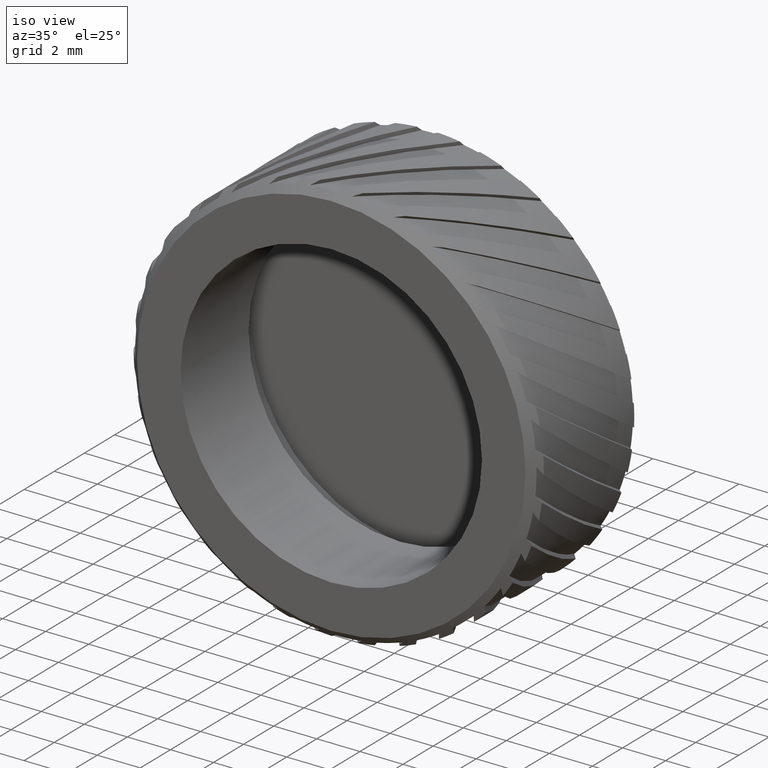
[diagram: clean part render]
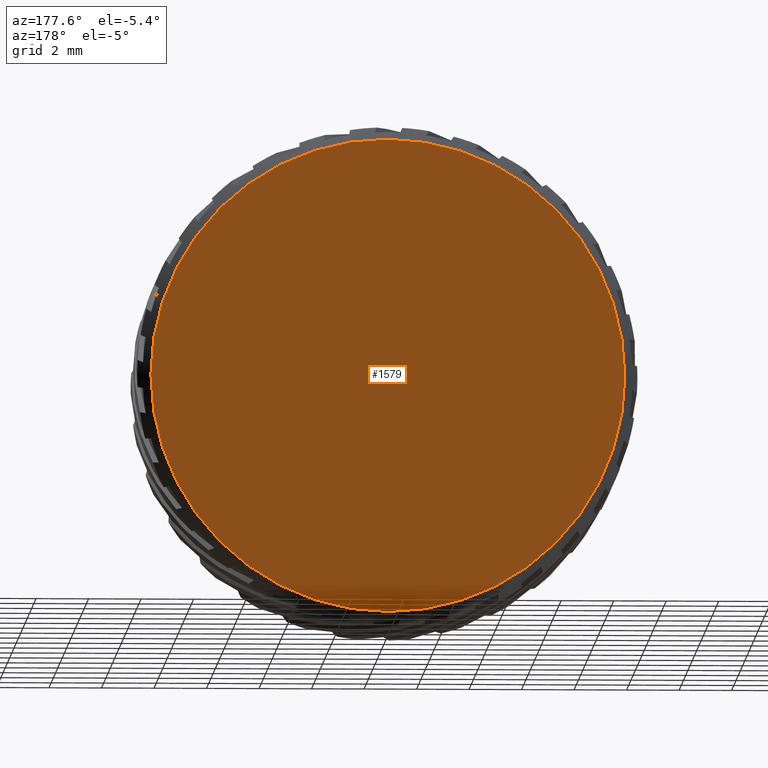
[diagram: tour spotlight — one face highlighted and labeled with its STEP entity id]
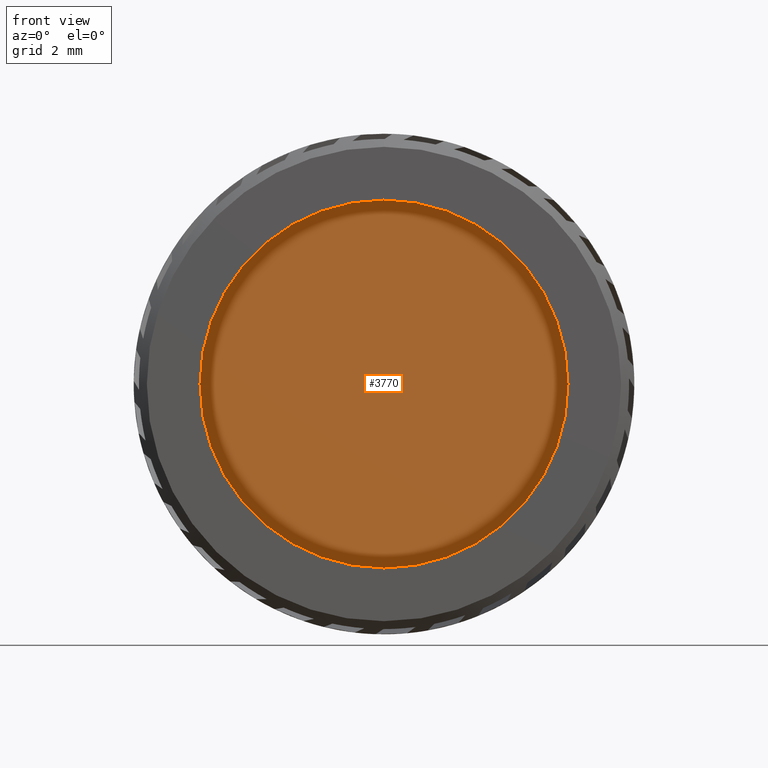
[diagram: tour spotlight — one face highlighted and labeled with its STEP entity id]
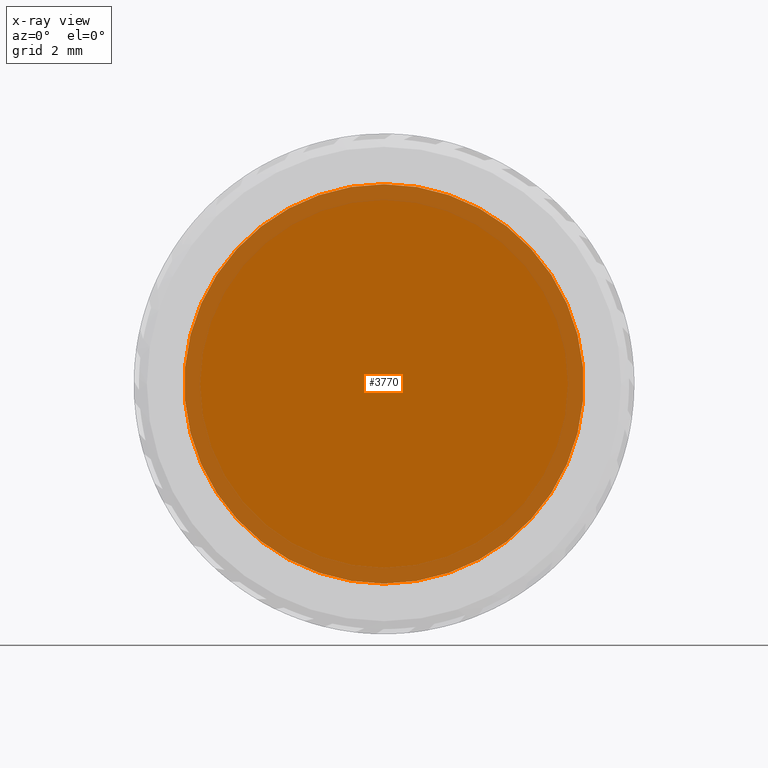
[diagram: x-ray of the same camera — body ghosted, this tour face saturated]
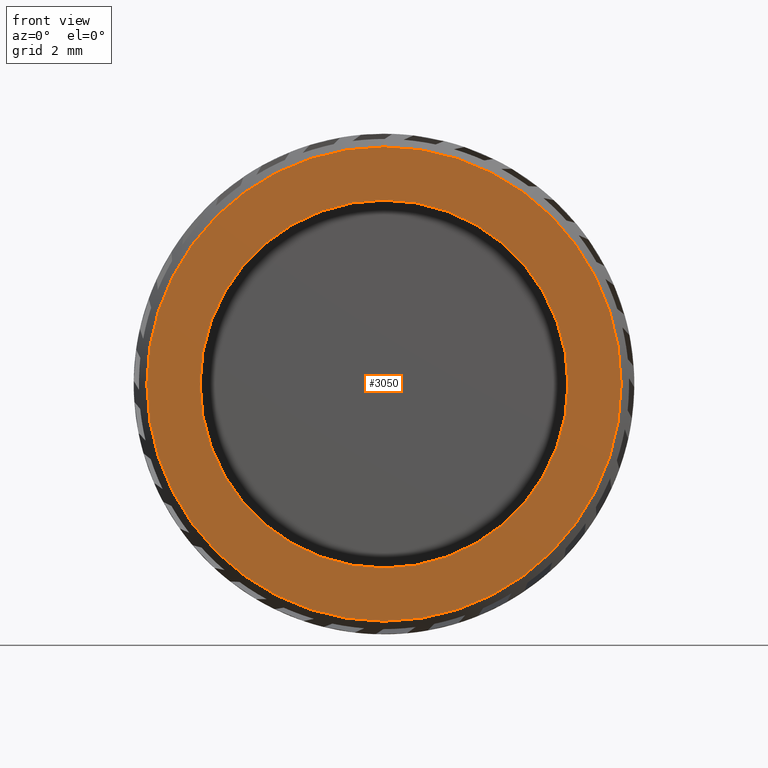
[diagram: tour spotlight — one face highlighted and labeled with its STEP entity id]
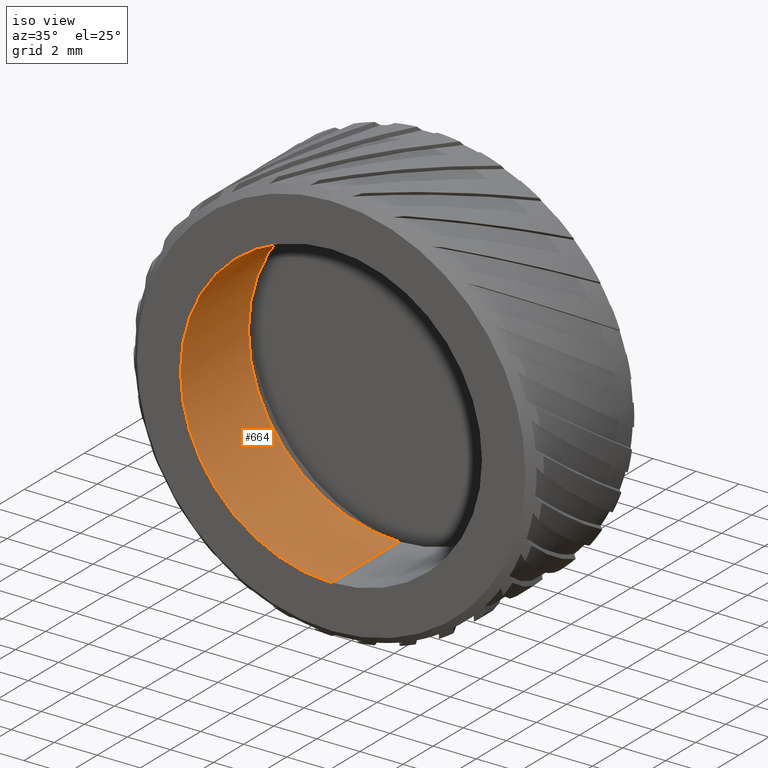
[diagram: tour spotlight — one face highlighted and labeled with its STEP entity id]
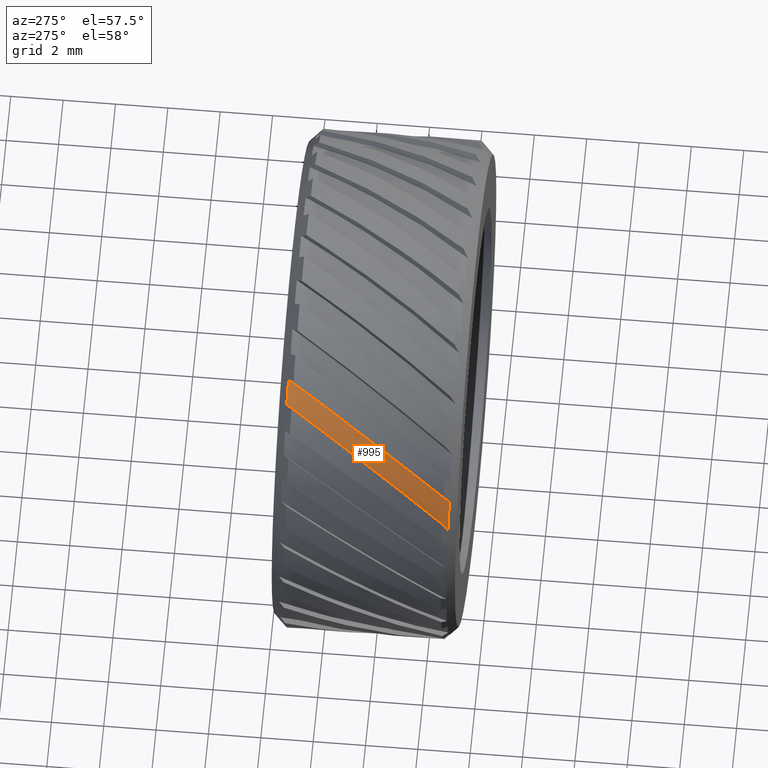
[diagram: tour spotlight — one face highlighted and labeled with its STEP entity id]
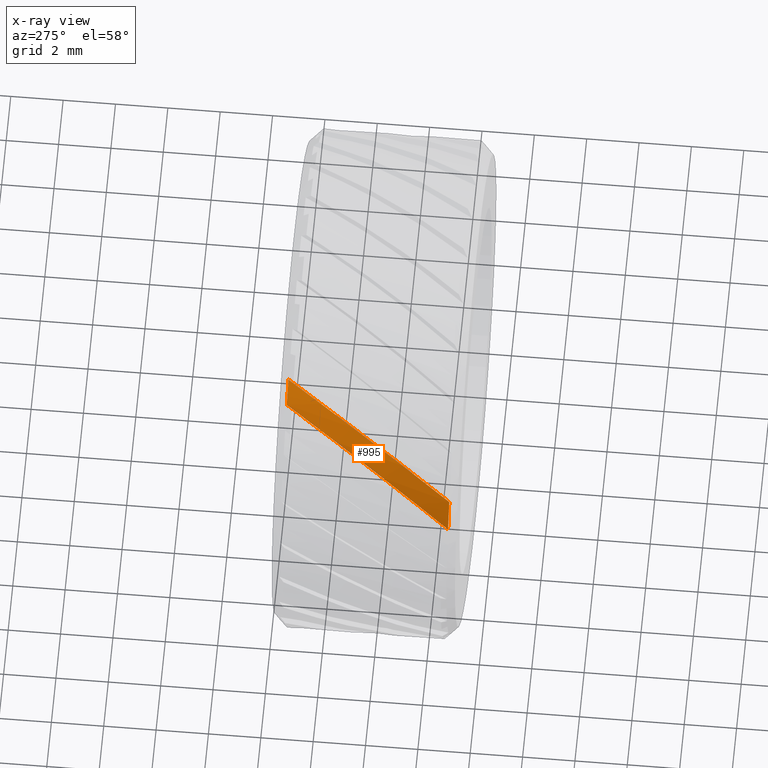
[diagram: x-ray of the same camera — body ghosted, this tour face saturated]
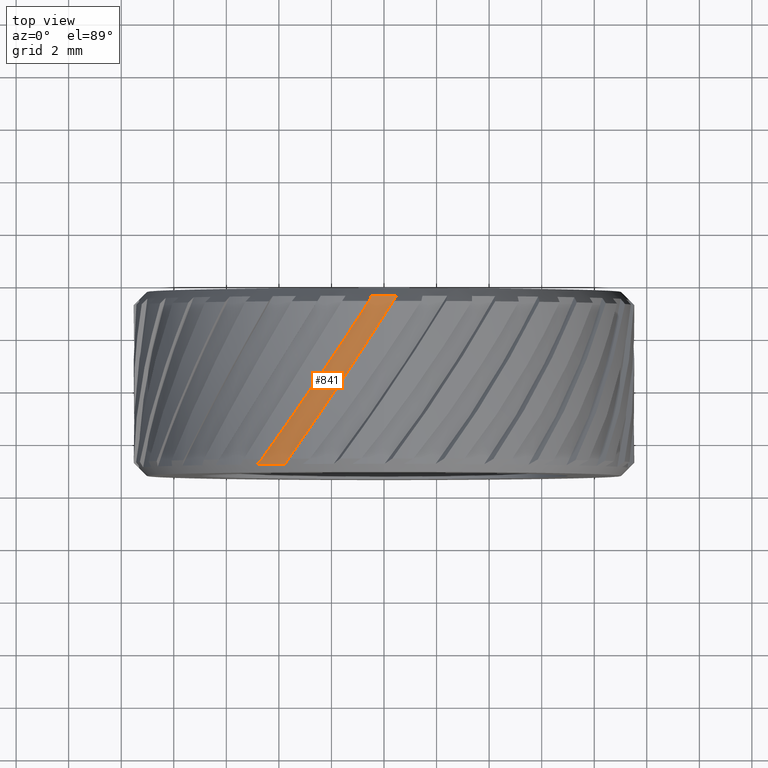
[diagram: tour spotlight — one face highlighted and labeled with its STEP entity id]
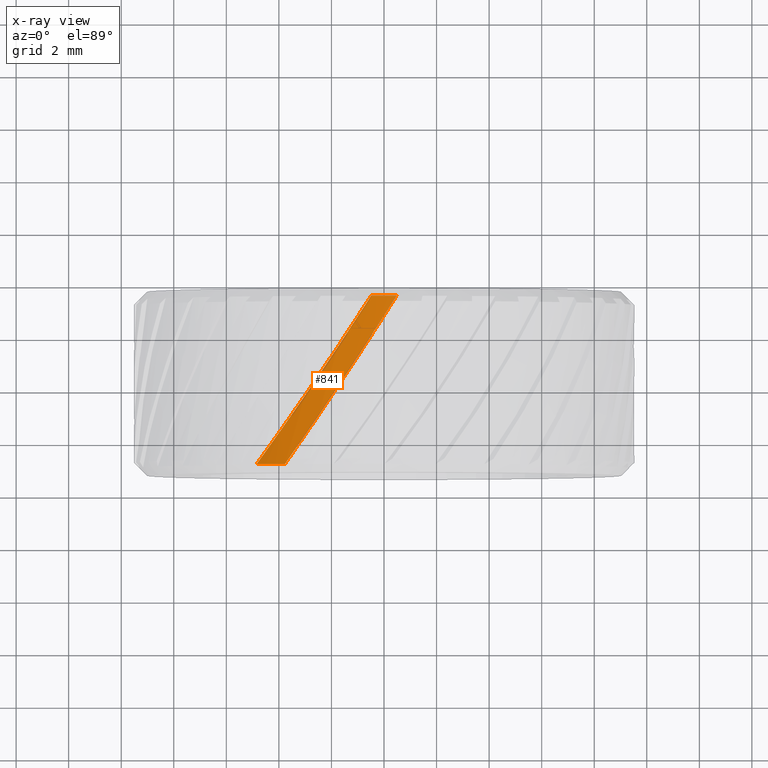
[diagram: x-ray of the same camera — body ghosted, this tour face saturated]
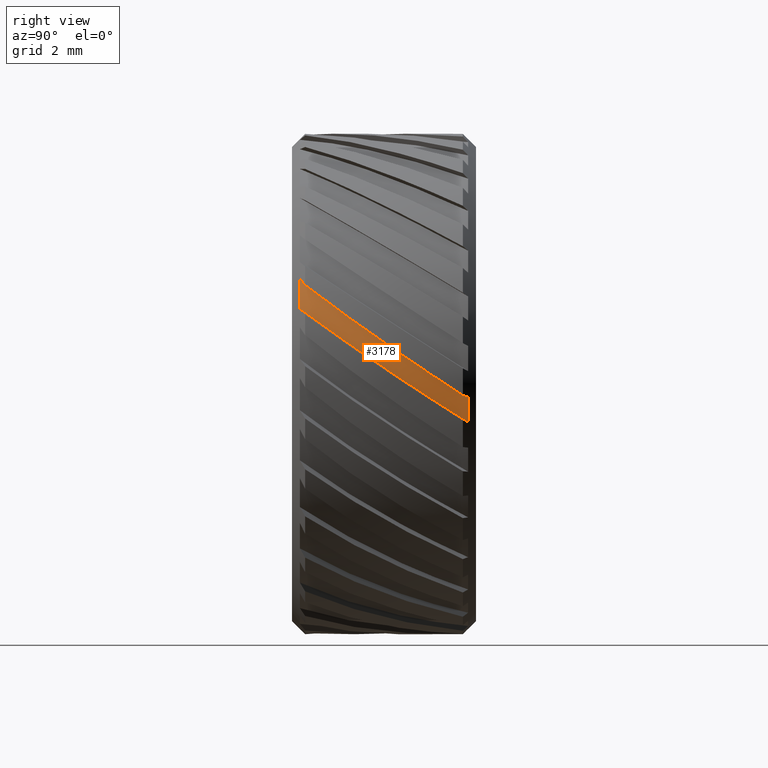
[diagram: tour spotlight — one face highlighted and labeled with its STEP entity id]
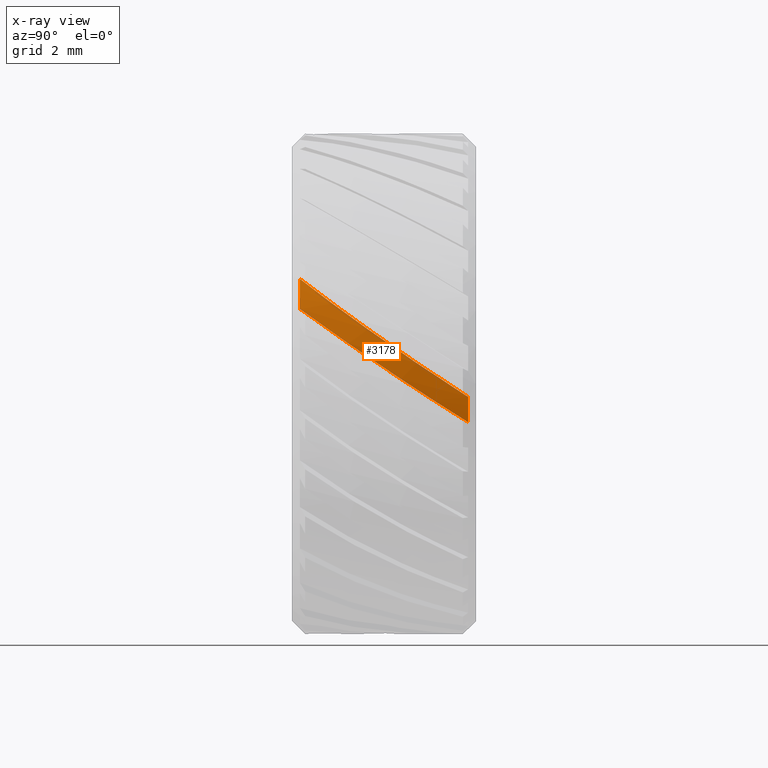
[diagram: x-ray of the same camera — body ghosted, this tour face saturated]
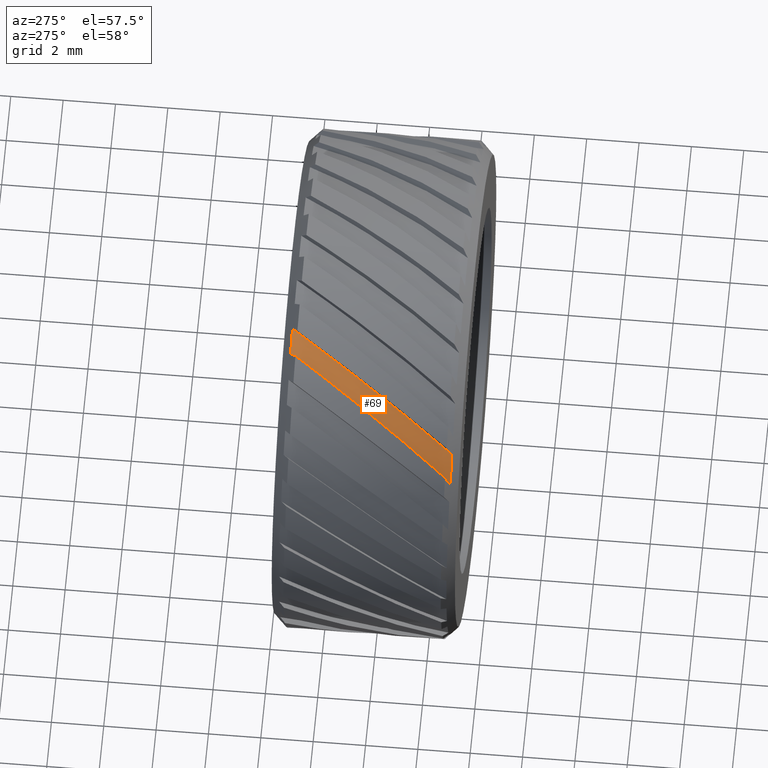
[diagram: tour spotlight — one face highlighted and labeled with its STEP entity id]
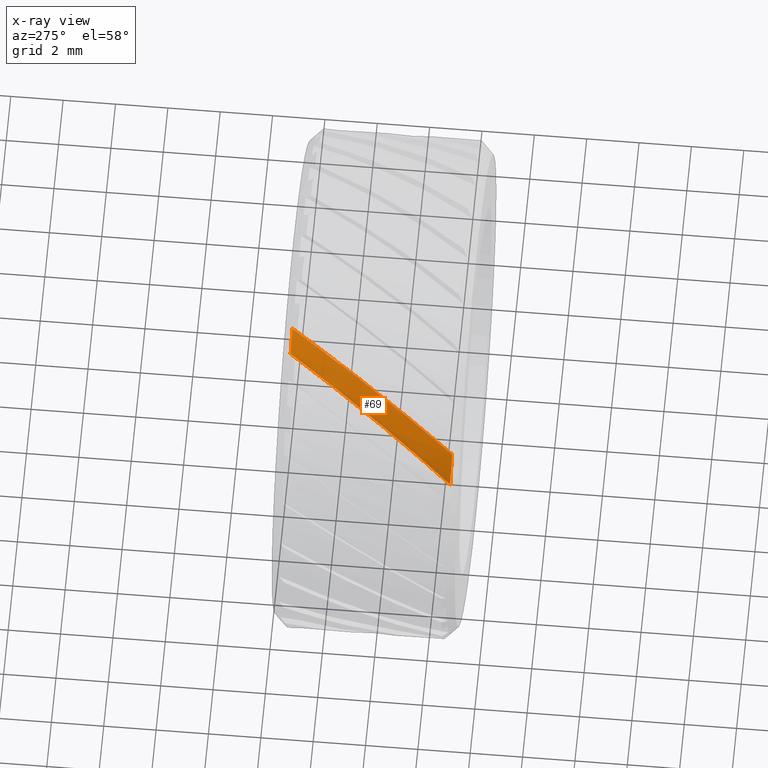
[diagram: x-ray of the same camera — body ghosted, this tour face saturated]
A machine part: a face-by-face anatomy tour. The part has 134 B-rep faces; the first image is the clean iso view, then the 8 largest visible faces are spotlighted one at a time (largest first), each with its STEP entity span.

Face 1 — auxiliary view, entity #1579. In plain terms, the highlighted planar face has unit normal (0, -1, 0).
Definition (entity closure, byte-faithful):
#77 = ORIENTED_EDGE ( 'NONE', *, *, #4055, .T. ) ;
#171 = FACE_OUTER_BOUND ( 'NONE', #3101, .T. ) ;
#269 = CARTESIAN_POINT ( 'NONE',  ( 1.135859906209171400E-015, -6.330884482231919500, 9.025000000000016300 ) ) ;
#277 = PLANE ( 'NONE',  #2197 ) ;
#285 = DIRECTION ( 'NONE',  ( -0.0000000000000000000, 1.000000000000000000, -0.0000000000000000000 ) ) ;
#373 = CARTESIAN_POINT ( 'NONE',  ( 0.0000000000000000000, -6.330884482231919500, 0.0000000000000000000 ) ) ;
#419 = CIRCLE ( 'NONE', #4299, 9.025000000000016300 ) ;
#1078 = DIRECTION ( 'NONE',  ( 0.0000000000000000000, -0.0000000000000000000, -1.000000000000000000 ) ) ;
#1250 = AXIS2_PLACEMENT_3D ( 'NONE', #373, #3658, #2534 ) ;
#1579 = ADVANCED_FACE ( 'NONE', ( #171 ), #277, .F. ) ;
#1692 = CARTESIAN_POINT ( 'NONE',  ( 0.0000000000000000000, -6.330884482231919500, -9.025000000000016300 ) ) ;
#2110 = CARTESIAN_POINT ( 'NONE',  ( 0.0000000000000000000, -6.330884482231919500, 0.0000000000000000000 ) ) ;
#2131 = CARTESIAN_POINT ( 'NONE',  ( 9.525000000000007500, -6.330884482231919500, 0.0000000000000000000 ) ) ;
#2140 = VERTEX_POINT ( 'NONE', #269 ) ;
#2197 = AXIS2_PLACEMENT_3D ( 'NONE', #2131, #3267, #1078 ) ;
#2402 = ORIENTED_EDGE ( 'NONE', *, *, #3058, .T. ) ;
#2534 = DIRECTION ( 'NONE',  ( 0.0000000000000000000, 0.0000000000000000000, -1.000000000000000000 ) ) ;
#2662 = CIRCLE ( 'NONE', #1250, 9.025000000000016300 ) ;
#3058 = EDGE_CURVE ( 'NONE', #2140, #4567, #2662, .T. ) ;
#3101 = EDGE_LOOP ( 'NONE', ( #77, #2402 ) ) ;
#3267 = DIRECTION ( 'NONE',  ( 0.0000000000000000000, -1.000000000000000000, 0.0000000000000000000 ) ) ;
#3559 = DIRECTION ( 'NONE',  ( 0.0000000000000000000, 0.0000000000000000000, -1.000000000000000000 ) ) ;
#3658 = DIRECTION ( 'NONE',  ( -0.0000000000000000000, 1.000000000000000000, -0.0000000000000000000 ) ) ;
#4055 = EDGE_CURVE ( 'NONE', #4567, #2140, #419, .T. ) ;
#4299 = AXIS2_PLACEMENT_3D ( 'NONE', #2110, #285, #3559 ) ;
#4567 = VERTEX_POINT ( 'NONE', #1692 ) ;

Face 2 — front view, entity #3770. An x-ray twin of the same camera follows (body ghosted, this face saturated) — the face is partly hidden behind the body. In plain terms, the highlighted planar face has unit normal (-0, 1, 0).
Definition (entity closure, byte-faithful):
#199 = CARTESIAN_POINT ( 'NONE',  ( 9.307315673519893300E-016, -7.830884482231917700, -7.600000000000007600 ) ) ;
#433 = CIRCLE ( 'NONE', #2441, 7.600000000000007600 ) ;
#567 = VERTEX_POINT ( 'NONE', #199 ) ;
#749 = EDGE_LOOP ( 'NONE', ( #1335, #2240 ) ) ;
#886 = FACE_OUTER_BOUND ( 'NONE', #749, .T. ) ;
#1147 = DIRECTION ( 'NONE',  ( -0.0000000000000000000, 1.000000000000000000, 0.0000000000000000000 ) ) ;
#1335 = ORIENTED_EDGE ( 'NONE', *, *, #3177, .F. ) ;
#1479 = DIRECTION ( 'NONE',  ( 0.0000000000000000000, 0.0000000000000000000, 1.000000000000000000 ) ) ;
#1713 = DIRECTION ( 'NONE',  ( 0.0000000000000000000, 0.0000000000000000000, 1.000000000000000000 ) ) ;
#1843 = CARTESIAN_POINT ( 'NONE',  ( 7.600000000000007600, -7.830884482231917700, 0.0000000000000000000 ) ) ;
#2029 = CIRCLE ( 'NONE', #4275, 7.600000000000007600 ) ;
#2240 = ORIENTED_EDGE ( 'NONE', *, *, #3243, .F. ) ;
#2256 = PLANE ( 'NONE',  #2650 ) ;
#2441 = AXIS2_PLACEMENT_3D ( 'NONE', #3679, #3664, #1479 ) ;
#2453 = CARTESIAN_POINT ( 'NONE',  ( 0.0000000000000000000, -7.830884482231917700, 7.600000000000007600 ) ) ;
#2614 = DIRECTION ( 'NONE',  ( 0.0000000000000000000, 0.0000000000000000000, 1.000000000000000000 ) ) ;
#2650 = AXIS2_PLACEMENT_3D ( 'NONE', #1843, #1147, #2614 ) ;
#2995 = VERTEX_POINT ( 'NONE', #2453 ) ;
#3177 = EDGE_CURVE ( 'NONE', #2995, #567, #2029, .T. ) ;
#3243 = EDGE_CURVE ( 'NONE', #567, #2995, #433, .T. ) ;
#3643 = DIRECTION ( 'NONE',  ( -0.0000000000000000000, 1.000000000000000000, -0.0000000000000000000 ) ) ;
#3664 = DIRECTION ( 'NONE',  ( -0.0000000000000000000, 1.000000000000000000, -0.0000000000000000000 ) ) ;
#3679 = CARTESIAN_POINT ( 'NONE',  ( 0.0000000000000000000, -7.830884482231917700, 0.0000000000000000000 ) ) ;
#3770 = ADVANCED_FACE ( 'NONE', ( #886 ), #2256, .F. ) ;
#4275 = AXIS2_PLACEMENT_3D ( 'NONE', #4717, #3643, #1713 ) ;
#4717 = CARTESIAN_POINT ( 'NONE',  ( 0.0000000000000000000, -7.830884482231917700, 0.0000000000000000000 ) ) ;

Face 3 — front view, entity #3050. In plain terms, the highlighted planar face has unit normal (-0, 1, 0).
Definition (entity closure, byte-faithful):
#34 = AXIS2_PLACEMENT_3D ( 'NONE', #55, #1834, #3709 ) ;
#55 = CARTESIAN_POINT ( 'NONE',  ( 0.0000000000000000000, -13.33088448223191600, 0.0000000000000000000 ) ) ;
#64 = DIRECTION ( 'NONE',  ( -0.0000000000000000000, 1.000000000000000000, -0.0000000000000000000 ) ) ;
#202 = FACE_BOUND ( 'NONE', #2597, .T. ) ;
#318 = ORIENTED_EDGE ( 'NONE', *, *, #3741, .T. ) ;
#382 = CARTESIAN_POINT ( 'NONE',  ( 0.0000000000000000000, -13.33088448223191600, 0.0000000000000000000 ) ) ;
#763 = AXIS2_PLACEMENT_3D ( 'NONE', #3702, #4077, #1433 ) ;
#1071 = DIRECTION ( 'NONE',  ( 0.0000000000000000000, 0.0000000000000000000, 1.000000000000000000 ) ) ;
#1111 = PLANE ( 'NONE',  #763 ) ;
#1236 = CIRCLE ( 'NONE', #34, 7.000000000000007100 ) ;
#1274 = EDGE_CURVE ( 'NONE', #2347, #2778, #1236, .T. ) ;
#1433 = DIRECTION ( 'NONE',  ( 0.0000000000000000000, 0.0000000000000000000, 1.000000000000000000 ) ) ;
#1526 = DIRECTION ( 'NONE',  ( 0.0000000000000000000, 0.0000000000000000000, 1.000000000000000000 ) ) ;
#1583 = AXIS2_PLACEMENT_3D ( 'NONE', #4423, #64, #1526 ) ;
#1625 = CARTESIAN_POINT ( 'NONE',  ( 8.572527594031481100E-016, -13.33088448223191600, -7.000000000000007100 ) ) ;
#1750 = CARTESIAN_POINT ( 'NONE',  ( 0.0000000000000000000, -13.33088448223191600, 0.0000000000000000000 ) ) ;
#1823 = CIRCLE ( 'NONE', #4032, 9.024999999999996800 ) ;
#1834 = DIRECTION ( 'NONE',  ( -0.0000000000000000000, 1.000000000000000000, -0.0000000000000000000 ) ) ;
#1853 = CIRCLE ( 'NONE', #1583, 7.000000000000007100 ) ;
#1882 = EDGE_CURVE ( 'NONE', #4268, #3024, #1823, .T. ) ;
#1930 = ORIENTED_EDGE ( 'NONE', *, *, #4112, .T. ) ;
#1996 = CARTESIAN_POINT ( 'NONE',  ( 1.135859906209170400E-015, -13.33088448223191600, -9.024999999999996800 ) ) ;
#2347 = VERTEX_POINT ( 'NONE', #3048 ) ;
#2375 = ORIENTED_EDGE ( 'NONE', *, *, #1882, .T. ) ;
#2428 = AXIS2_PLACEMENT_3D ( 'NONE', #382, #4384, #1071 ) ;
#2582 = CARTESIAN_POINT ( 'NONE',  ( 0.0000000000000000000, -13.33088448223191600, 9.024999999999996800 ) ) ;
#2597 = EDGE_LOOP ( 'NONE', ( #4501, #318 ) ) ;
#2778 = VERTEX_POINT ( 'NONE', #1625 ) ;
#2874 = DIRECTION ( 'NONE',  ( 0.0000000000000000000, -1.000000000000000000, 0.0000000000000000000 ) ) ;
#3024 = VERTEX_POINT ( 'NONE', #2582 ) ;
#3048 = CARTESIAN_POINT ( 'NONE',  ( 0.0000000000000000000, -13.33088448223191600, 7.000000000000007100 ) ) ;
#3050 = ADVANCED_FACE ( 'NONE', ( #4468, #202 ), #1111, .F. ) ;
#3537 = CIRCLE ( 'NONE', #2428, 9.024999999999996800 ) ;
#3702 = CARTESIAN_POINT ( 'NONE',  ( 7.000000000000007100, -13.33088448223191600, 0.0000000000000000000 ) ) ;
#3709 = DIRECTION ( 'NONE',  ( 0.0000000000000000000, 0.0000000000000000000, 1.000000000000000000 ) ) ;
#3741 = EDGE_CURVE ( 'NONE', #2778, #2347, #1853, .T. ) ;
#4032 = AXIS2_PLACEMENT_3D ( 'NONE', #1750, #2874, #4336 ) ;
#4077 = DIRECTION ( 'NONE',  ( -0.0000000000000000000, 1.000000000000000000, 0.0000000000000000000 ) ) ;
#4112 = EDGE_CURVE ( 'NONE', #3024, #4268, #3537, .T. ) ;
#4268 = VERTEX_POINT ( 'NONE', #1996 ) ;
#4336 = DIRECTION ( 'NONE',  ( 0.0000000000000000000, 0.0000000000000000000, 1.000000000000000000 ) ) ;
#4384 = DIRECTION ( 'NONE',  ( 0.0000000000000000000, -1.000000000000000000, 0.0000000000000000000 ) ) ;
#4423 = CARTESIAN_POINT ( 'NONE',  ( 0.0000000000000000000, -13.33088448223191600, 0.0000000000000000000 ) ) ;
#4433 = EDGE_LOOP ( 'NONE', ( #1930, #2375 ) ) ;
#4468 = FACE_OUTER_BOUND ( 'NONE', #4433, .T. ) ;
#4501 = ORIENTED_EDGE ( 'NONE', *, *, #1274, .T. ) ;

Face 4 — iso view, entity #664. In plain terms, the highlighted cylindrical surface (partial cylindrical patch) has radius 7 mm, axis along (-0, 1, -0).
Definition (entity closure, byte-faithful):
#64 = DIRECTION ( 'NONE',  ( -0.0000000000000000000, 1.000000000000000000, -0.0000000000000000000 ) ) ;
#355 = ORIENTED_EDGE ( 'NONE', *, *, #4777, .F. ) ;
#357 = DIRECTION ( 'NONE',  ( -0.0000000000000000000, 1.000000000000000000, -0.0000000000000000000 ) ) ;
#393 = EDGE_CURVE ( 'NONE', #4669, #1691, #2775, .T. ) ;
#407 = DIRECTION ( 'NONE',  ( 0.0000000000000000000, 0.0000000000000000000, 1.000000000000000000 ) ) ;
#661 = CARTESIAN_POINT ( 'NONE',  ( 0.0000000000000000000, 46.02073106022621100, 0.0000000000000000000 ) ) ;
#664 = ADVANCED_FACE ( 'NONE', ( #1857 ), #1410, .F. ) ;
#767 = DIRECTION ( 'NONE',  ( -0.0000000000000000000, 1.000000000000000000, -0.0000000000000000000 ) ) ;
#1066 = CARTESIAN_POINT ( 'NONE',  ( 8.572527594031481100E-016, 46.02073106022621100, -7.000000000000007100 ) ) ;
#1137 = LINE ( 'NONE', #1066, #4191 ) ;
#1216 = ORIENTED_EDGE ( 'NONE', *, *, #393, .T. ) ;
#1392 = CARTESIAN_POINT ( 'NONE',  ( 8.572527594031481100E-016, -8.830884482231917700, -7.000000000000007100 ) ) ;
#1396 = LINE ( 'NONE', #4091, #3056 ) ;
#1410 = CYLINDRICAL_SURFACE ( 'NONE', #1470, 7.000000000000007100 ) ;
#1412 = DIRECTION ( 'NONE',  ( -0.0000000000000000000, 1.000000000000000000, -0.0000000000000000000 ) ) ;
#1470 = AXIS2_PLACEMENT_3D ( 'NONE', #661, #4354, #4743 ) ;
#1526 = DIRECTION ( 'NONE',  ( 0.0000000000000000000, 0.0000000000000000000, 1.000000000000000000 ) ) ;
#1583 = AXIS2_PLACEMENT_3D ( 'NONE', #4423, #64, #1526 ) ;
#1625 = CARTESIAN_POINT ( 'NONE',  ( 8.572527594031481100E-016, -13.33088448223191600, -7.000000000000007100 ) ) ;
#1691 = VERTEX_POINT ( 'NONE', #4181 ) ;
#1853 = CIRCLE ( 'NONE', #1583, 7.000000000000007100 ) ;
#1857 = FACE_OUTER_BOUND ( 'NONE', #1881, .T. ) ;
#1881 = EDGE_LOOP ( 'NONE', ( #2300, #4127, #1216, #355 ) ) ;
#2300 = ORIENTED_EDGE ( 'NONE', *, *, #3741, .F. ) ;
#2347 = VERTEX_POINT ( 'NONE', #3048 ) ;
#2647 = EDGE_CURVE ( 'NONE', #2778, #4669, #1137, .T. ) ;
#2775 = CIRCLE ( 'NONE', #2983, 7.000000000000007100 ) ;
#2778 = VERTEX_POINT ( 'NONE', #1625 ) ;
#2958 = CARTESIAN_POINT ( 'NONE',  ( 0.0000000000000000000, -8.830884482231917700, 0.0000000000000000000 ) ) ;
#2983 = AXIS2_PLACEMENT_3D ( 'NONE', #2958, #767, #407 ) ;
#3048 = CARTESIAN_POINT ( 'NONE',  ( 0.0000000000000000000, -13.33088448223191600, 7.000000000000007100 ) ) ;
#3056 = VECTOR ( 'NONE', #357, 1000.000000000000000 ) ;
#3741 = EDGE_CURVE ( 'NONE', #2778, #2347, #1853, .T. ) ;
#4091 = CARTESIAN_POINT ( 'NONE',  ( 0.0000000000000000000, 46.02073106022621100, 7.000000000000007100 ) ) ;
#4127 = ORIENTED_EDGE ( 'NONE', *, *, #2647, .T. ) ;
#4181 = CARTESIAN_POINT ( 'NONE',  ( 0.0000000000000000000, -8.830884482231917700, 7.000000000000007100 ) ) ;
#4191 = VECTOR ( 'NONE', #1412, 1000.000000000000000 ) ;
#4354 = DIRECTION ( 'NONE',  ( -0.0000000000000000000, 1.000000000000000000, -0.0000000000000000000 ) ) ;
#4423 = CARTESIAN_POINT ( 'NONE',  ( 0.0000000000000000000, -13.33088448223191600, 0.0000000000000000000 ) ) ;
#4669 = VERTEX_POINT ( 'NONE', #1392 ) ;
#4743 = DIRECTION ( 'NONE',  ( 0.0000000000000000000, 0.0000000000000000000, 1.000000000000000000 ) ) ;
#4777 = EDGE_CURVE ( 'NONE', #2347, #1691, #1396, .T. ) ;

Face 5 — auxiliary view, entity #995. An x-ray twin of the same camera follows (body ghosted, this face saturated) — the face is partly hidden behind the body. In plain terms, the highlighted cylindrical surface (partial cylindrical patch) has radius 9.325 mm, axis along (0, 1, 0).
Definition (entity closure, byte-faithful):
#125 = AXIS2_PLACEMENT_3D ( 'NONE', #3517, #1302, #232 ) ;
#165 = DIRECTION ( 'NONE',  ( -0.4067366430757887700, 0.0000000000000000000, 0.9135454576426060800 ) ) ;
#232 = DIRECTION ( 'NONE',  ( 0.4067366430757887700, 0.0000000000000000000, -0.9135454576426060800 ) ) ;
#234 = CARTESIAN_POINT ( 'NONE',  ( -7.326289410136118900, -11.12543007364071300, 5.952900787616722600 ) ) ;
#766 = AXIS2_PLACEMENT_3D ( 'NONE', #2634, #1959, #1913 ) ;
#879 =( BOUNDED_CURVE ( )  B_SPLINE_CURVE ( 3, ( #1836, #3373, #4429, #2233 ),
 .UNSPECIFIED., .F., .T. ) 
 B_SPLINE_CURVE_WITH_KNOTS ( ( 4, 4 ),
 ( 1.831951554860603300, 2.327952618758710300 ),
 .UNSPECIFIED. ) 
 CURVE ( )  GEOMETRIC_REPRESENTATION_ITEM ( )  RATIONAL_B_SPLINE_CURVE ( ( 1.000000000000000000, 0.9796034405998211800, 0.9796034405998211800, 1.000000000000000000 ) ) 
 REPRESENTATION_ITEM ( '' )  );
#995 = ADVANCED_FACE ( 'NONE', ( #1912 ), #1341, .T. ) ;
#1081 = VERTEX_POINT ( 'NONE', #4684 ) ;
#1150 = CARTESIAN_POINT ( 'NONE',  ( -8.063701062845789000, -13.03088448223190600, 4.683198711250661900 ) ) ;
#1253 = AXIS2_PLACEMENT_3D ( 'NONE', #3094, #2346, #165 ) ;
#1302 = DIRECTION ( 'NONE',  ( 0.0000000000000000000, -1.000000000000000000, 0.0000000000000000000 ) ) ;
#1324 = EDGE_CURVE ( 'NONE', #1081, #2682, #4646, .T. ) ;
#1341 = CYLINDRICAL_SURFACE ( 'NONE', #1253, 9.325000000000009900 ) ;
#1426 = ORIENTED_EDGE ( 'NONE', *, *, #2263, .T. ) ;
#1815 = EDGE_LOOP ( 'NONE', ( #2002, #1426, #2659, #4511 ) ) ;
#1836 = CARTESIAN_POINT ( 'NONE',  ( -5.863743277125377200, -6.630884482231914000, 7.250664781933246600 ) ) ;
#1912 = FACE_OUTER_BOUND ( 'NONE', #1815, .T. ) ;
#1913 = DIRECTION ( 'NONE',  ( -0.4067366430757887700, 0.0000000000000000000, 0.9135454576426060800 ) ) ;
#1959 = DIRECTION ( 'NONE',  ( 0.0000000000000000000, 1.000000000000000000, 0.0000000000000000000 ) ) ;
#2002 = ORIENTED_EDGE ( 'NONE', *, *, #4772, .T. ) ;
#2233 = CARTESIAN_POINT ( 'NONE',  ( -8.607800277777592200, -13.03088448223190600, 3.586279322346791700 ) ) ;
#2263 = EDGE_CURVE ( 'NONE', #4015, #1081, #879, .T. ) ;
#2346 = DIRECTION ( 'NONE',  ( 0.0000000000000000000, 1.000000000000000000, 0.0000000000000000000 ) ) ;
#2401 = CARTESIAN_POINT ( 'NONE',  ( -5.083612639111335000, -6.630884482231914000, 7.817448914797442000 ) ) ;
#2634 = CARTESIAN_POINT ( 'NONE',  ( 0.0000000000000000000, -13.03088448223190600, 0.0000000000000000000 ) ) ;
#2659 = ORIENTED_EDGE ( 'NONE', *, *, #1324, .T. ) ;
#2682 = VERTEX_POINT ( 'NONE', #1150 ) ;
#2746 = CARTESIAN_POINT ( 'NONE',  ( -6.314540105499948400, -8.952610133768862600, 7.016988496806385800 ) ) ;
#2834 = EDGE_CURVE ( 'NONE', #2682, #4754, #4547, .T. ) ;
#3094 = CARTESIAN_POINT ( 'NONE',  ( 0.0000000000000000000, 46.02073106022621100, 0.0000000000000000000 ) ) ;
#3111 = CIRCLE ( 'NONE', #125, 9.325000000000009900 ) ;
#3373 = CARTESIAN_POINT ( 'NONE',  ( -7.074976818393638600, -9.040429527794446000, 6.271118388844198100 ) ) ;
#3517 = CARTESIAN_POINT ( 'NONE',  ( 0.0000000000000000000, -6.630884482231914000, 0.0000000000000000000 ) ) ;
#3819 = CARTESIAN_POINT ( 'NONE',  ( -5.083612639111335000, -6.630884482231914000, 7.817448914797442000 ) ) ;
#4015 = VERTEX_POINT ( 'NONE', #4283 ) ;
#4283 = CARTESIAN_POINT ( 'NONE',  ( -5.863743277125377200, -6.630884482231914000, 7.250664781933246600 ) ) ;
#4429 = CARTESIAN_POINT ( 'NONE',  ( -8.008707376060929300, -11.21818150876652700, 5.024224217959866400 ) ) ;
#4511 = ORIENTED_EDGE ( 'NONE', *, *, #2834, .T. ) ;
#4539 = CARTESIAN_POINT ( 'NONE',  ( -8.063701062845789000, -13.03088448223190600, 4.683198711250661900 ) ) ;
#4547 =( BOUNDED_CURVE ( )  B_SPLINE_CURVE ( 3, ( #4539, #234, #2746, #2401 ),
 .UNSPECIFIED., .F., .T. ) 
 B_SPLINE_CURVE_WITH_KNOTS ( ( 4, 4 ),
 ( 4.086635441593596600, 4.554688600638674400 ),
 .UNSPECIFIED. ) 
 CURVE ( )  GEOMETRIC_REPRESENTATION_ITEM ( )  RATIONAL_B_SPLINE_CURVE ( ( 1.000000000000000000, 0.9818270231168571000, 0.9818270231168571000, 1.000000000000000000 ) ) 
 REPRESENTATION_ITEM ( '' )  );
#4646 = CIRCLE ( 'NONE', #766, 9.325000000000009900 ) ;
#4684 = CARTESIAN_POINT ( 'NONE',  ( -8.607800277777592200, -13.03088448223190600, 3.586279322346791700 ) ) ;
#4754 = VERTEX_POINT ( 'NONE', #3819 ) ;
#4772 = EDGE_CURVE ( 'NONE', #4754, #4015, #3111, .T. ) ;

Face 6 — top view, entity #841. An x-ray twin of the same camera follows (body ghosted, this face saturated) — the face is partly hidden behind the body. In plain terms, the highlighted cylindrical surface (partial cylindrical patch) has radius 9.325 mm, axis along (0, 1, 0).
Definition (entity closure, byte-faithful):
#11 = EDGE_CURVE ( 'NONE', #3852, #3475, #534, .T. ) ;
#158 = ORIENTED_EDGE ( 'NONE', *, *, #4668, .T. ) ;
#225 = ORIENTED_EDGE ( 'NONE', *, *, #497, .T. ) ;
#497 = EDGE_CURVE ( 'NONE', #2358, #3999, #1291, .T. ) ;
#534 =( BOUNDED_CURVE ( )  B_SPLINE_CURVE ( 3, ( #2992, #1894, #3010, #3309 ),
 .UNSPECIFIED., .F., .T. ) 
 B_SPLINE_CURVE_WITH_KNOTS ( ( 4, 4 ),
 ( 4.086635441593596600, 4.554688600638674400 ),
 .UNSPECIFIED. ) 
 CURVE ( )  GEOMETRIC_REPRESENTATION_ITEM ( )  RATIONAL_B_SPLINE_CURVE ( ( 1.000000000000000000, 0.9818270231168571000, 0.9818270231168571000, 1.000000000000000000 ) ) 
 REPRESENTATION_ITEM ( '' )  );
#639 = AXIS2_PLACEMENT_3D ( 'NONE', #1763, #3640, #1063 ) ;
#655 = EDGE_CURVE ( 'NONE', #1540, #2358, #3486, .T. ) ;
#678 = CARTESIAN_POINT ( 'NONE',  ( 0.0000000000000000000, -6.630884482231914000, 0.0000000000000000000 ) ) ;
#716 = CIRCLE ( 'NONE', #1527, 9.325000000000006400 ) ;
#731 = ORIENTED_EDGE ( 'NONE', *, *, #3487, .T. ) ;
#826 = DIRECTION ( 'NONE',  ( 0.2079116908177598100, 0.0000000000000000000, 0.9781476007338055800 ) ) ;
#841 = ADVANCED_FACE ( 'NONE', ( #4231 ), #1578, .T. ) ;
#854 = DIRECTION ( 'NONE',  ( 0.0000000000000000000, 1.000000000000000000, 0.0000000000000000000 ) ) ;
#876 = CIRCLE ( 'NONE', #639, 9.325000000000006400 ) ;
#1063 = DIRECTION ( 'NONE',  ( 0.2079116908177598100, 0.0000000000000000000, 0.9781476007338055800 ) ) ;
#1226 = CARTESIAN_POINT ( 'NONE',  ( 0.0000000000000000000, 46.02073106022621100, 0.0000000000000000000 ) ) ;
#1291 =( BOUNDED_CURVE ( )  B_SPLINE_CURVE ( 3, ( #2268, #1905, #4139, #1888 ),
 .UNSPECIFIED., .F., .T. ) 
 B_SPLINE_CURVE_WITH_KNOTS ( ( 4, 4 ),
 ( 1.831951554860603100, 2.327952618758709800 ),
 .UNSPECIFIED. ) 
 CURVE ( )  GEOMETRIC_REPRESENTATION_ITEM ( )  RATIONAL_B_SPLINE_CURVE ( ( 1.000000000000000000, 0.9796034405998213000, 0.9796034405998213000, 1.000000000000000000 ) ) 
 REPRESENTATION_ITEM ( '' )  );
#1516 = DIRECTION ( 'NONE',  ( 0.0000000000000000000, -1.000000000000000000, 0.0000000000000000000 ) ) ;
#1527 = AXIS2_PLACEMENT_3D ( 'NONE', #3792, #1516, #4477 ) ;
#1536 = CARTESIAN_POINT ( 'NONE',  ( 0.4822521648072759500, -6.630884482231914000, 9.312521562366384800 ) ) ;
#1540 = VERTEX_POINT ( 'NONE', #2055 ) ;
#1578 = CYLINDRICAL_SURFACE ( 'NONE', #3716, 9.325000000000006400 ) ;
#1763 = CARTESIAN_POINT ( 'NONE',  ( 0.0000000000000000000, -13.03088448223190600, 0.0000000000000000000 ) ) ;
#1888 = CARTESIAN_POINT ( 'NONE',  ( -4.855894612630671700, -13.03088448223190600, 7.960898976310687700 ) ) ;
#1894 = CARTESIAN_POINT ( 'NONE',  ( -2.428065347188082400, -11.12543007364071300, 9.122282772314440200 ) ) ;
#1905 = CARTESIAN_POINT ( 'NONE',  ( -2.037705576546603700, -9.040429527794442400, 9.232008384475070900 ) ) ;
#1964 = CARTESIAN_POINT ( 'NONE',  ( -0.4820341337096068500, -6.630884482231914000, 9.312532850623345100 ) ) ;
#2055 = CARTESIAN_POINT ( 'NONE',  ( 1.141983140204907700E-015, -6.630884482231914000, 9.325000000000006400 ) ) ;
#2096 = DIRECTION ( 'NONE',  ( 0.0000000000000000000, -1.000000000000000000, 0.0000000000000000000 ) ) ;
#2268 = CARTESIAN_POINT ( 'NONE',  ( -0.4820341337096068500, -6.630884482231914000, 9.312532850623345100 ) ) ;
#2301 = CARTESIAN_POINT ( 'NONE',  ( -3.770956061373416500, -13.03088448223190600, 8.528511909072486600 ) ) ;
#2358 = VERTEX_POINT ( 'NONE', #1964 ) ;
#2431 = CARTESIAN_POINT ( 'NONE',  ( -4.855894612630671700, -13.03088448223190600, 7.960898976310687700 ) ) ;
#2854 = DIRECTION ( 'NONE',  ( -0.2079116908177598100, 0.0000000000000000000, -0.9781476007338055800 ) ) ;
#2992 = CARTESIAN_POINT ( 'NONE',  ( -3.770956061373416500, -13.03088448223190600, 8.528511909072486600 ) ) ;
#3010 = CARTESIAN_POINT ( 'NONE',  ( -0.9840879030830196300, -8.952610133768862600, 9.388456492272096600 ) ) ;
#3095 = EDGE_LOOP ( 'NONE', ( #731, #3701, #225, #158, #3557 ) ) ;
#3309 = CARTESIAN_POINT ( 'NONE',  ( 0.4822521648072759500, -6.630884482231914000, 9.312521562366384800 ) ) ;
#3475 = VERTEX_POINT ( 'NONE', #1536 ) ;
#3486 = CIRCLE ( 'NONE', #4447, 9.325000000000006400 ) ;
#3487 = EDGE_CURVE ( 'NONE', #3475, #1540, #716, .T. ) ;
#3557 = ORIENTED_EDGE ( 'NONE', *, *, #11, .T. ) ;
#3640 = DIRECTION ( 'NONE',  ( 0.0000000000000000000, 1.000000000000000000, 0.0000000000000000000 ) ) ;
#3701 = ORIENTED_EDGE ( 'NONE', *, *, #655, .T. ) ;
#3716 = AXIS2_PLACEMENT_3D ( 'NONE', #1226, #854, #826 ) ;
#3792 = CARTESIAN_POINT ( 'NONE',  ( 0.0000000000000000000, -6.630884482231914000, 0.0000000000000000000 ) ) ;
#3852 = VERTEX_POINT ( 'NONE', #2301 ) ;
#3999 = VERTEX_POINT ( 'NONE', #2431 ) ;
#4139 = CARTESIAN_POINT ( 'NONE',  ( -3.526015470681894900, -11.21818150876652400, 8.772082861454231700 ) ) ;
#4231 = FACE_OUTER_BOUND ( 'NONE', #3095, .T. ) ;
#4447 = AXIS2_PLACEMENT_3D ( 'NONE', #678, #2096, #2854 ) ;
#4477 = DIRECTION ( 'NONE',  ( -0.2079116908177598100, 0.0000000000000000000, -0.9781476007338055800 ) ) ;
#4668 = EDGE_CURVE ( 'NONE', #3999, #3852, #876, .T. ) ;

Face 7 — right view, entity #3178. An x-ray twin of the same camera follows (body ghosted, this face saturated) — the face is partly hidden behind the body. In plain terms, the highlighted cylindrical surface (partial cylindrical patch) has radius 9.325 mm, axis along (0, 1, 0).
Definition (entity closure, byte-faithful):
#101 = EDGE_CURVE ( 'NONE', #4370, #2702, #2281, .T. ) ;
#200 = EDGE_CURVE ( 'NONE', #3649, #4145, #235, .T. ) ;
#235 =( BOUNDED_CURVE ( )  B_SPLINE_CURVE ( 3, ( #2352, #3912, #2419, #960 ),
 .UNSPECIFIED., .F., .T. ) 
 B_SPLINE_CURVE_WITH_KNOTS ( ( 4, 4 ),
 ( 1.831951554860603100, 2.327952618758709800 ),
 .UNSPECIFIED. ) 
 CURVE ( )  GEOMETRIC_REPRESENTATION_ITEM ( )  RATIONAL_B_SPLINE_CURVE ( ( 1.000000000000000000, 0.9796034405998213000, 0.9796034405998213000, 1.000000000000000000 ) ) 
 REPRESENTATION_ITEM ( '' )  );
#256 = CYLINDRICAL_SURFACE ( 'NONE', #3448, 9.325000000000008200 ) ;
#286 = AXIS2_PLACEMENT_3D ( 'NONE', #4784, #3995, #3622 ) ;
#389 = CARTESIAN_POINT ( 'NONE',  ( 0.0000000000000000000, -13.03088448223190600, -0.0000000000000000000 ) ) ;
#494 = CARTESIAN_POINT ( 'NONE',  ( 8.875964070626878300, -13.03088448223190600, 2.858826125692306900 ) ) ;
#771 = CIRCLE ( 'NONE', #3416, 9.325000000000008200 ) ;
#960 = CARTESIAN_POINT ( 'NONE',  ( 8.424867540403829100, -13.03088448223190600, 3.997152977639219200 ) ) ;
#1013 = DIRECTION ( 'NONE',  ( 0.0000000000000000000, 1.000000000000000000, 0.0000000000000000000 ) ) ;
#1027 = ORIENTED_EDGE ( 'NONE', *, *, #4712, .T. ) ;
#1198 = CARTESIAN_POINT ( 'NONE',  ( 9.326111892262522600, -11.12543007364071300, 1.461225951480464200 ) ) ;
#1361 = CIRCLE ( 'NONE', #286, 9.325000000000008200 ) ;
#1766 = DIRECTION ( 'NONE',  ( 0.9510565162951522000, 0.0000000000000000000, -0.3090169943749513400 ) ) ;
#1955 = ORIENTED_EDGE ( 'NONE', *, *, #2636, .T. ) ;
#1973 = CARTESIAN_POINT ( 'NONE',  ( 9.311904108520455000, -6.630884482231914000, -0.4940312477161512000 ) ) ;
#2281 =( BOUNDED_CURVE ( )  B_SPLINE_CURVE ( 3, ( #494, #1198, #4560, #2321 ),
 .UNSPECIFIED., .F., .T. ) 
 B_SPLINE_CURVE_WITH_KNOTS ( ( 4, 4 ),
 ( 4.086635441593596600, 4.554688600638674400 ),
 .UNSPECIFIED. ) 
 CURVE ( )  GEOMETRIC_REPRESENTATION_ITEM ( )  RATIONAL_B_SPLINE_CURVE ( ( 1.000000000000000000, 0.9818270231168571000, 0.9818270231168571000, 1.000000000000000000 ) ) 
 REPRESENTATION_ITEM ( '' )  );
#2321 = CARTESIAN_POINT ( 'NONE',  ( 9.211097517167720700, -6.630884482231914000, -1.453033905050664700 ) ) ;
#2352 = CARTESIAN_POINT ( 'NONE',  ( 9.311904108520455000, -6.630884482231914000, -0.4940312477161512000 ) ) ;
#2419 = CARTESIAN_POINT ( 'NONE',  ( 9.092597452309370000, -11.21818150876652400, 2.589767247836046900 ) ) ;
#2587 = CARTESIAN_POINT ( 'NONE',  ( 9.211097517167720700, -6.630884482231914000, -1.453033905050664700 ) ) ;
#2636 = EDGE_CURVE ( 'NONE', #2702, #3649, #1361, .T. ) ;
#2702 = VERTEX_POINT ( 'NONE', #2587 ) ;
#2882 = CARTESIAN_POINT ( 'NONE',  ( 0.0000000000000000000, 46.02073106022621100, 0.0000000000000000000 ) ) ;
#2911 = DIRECTION ( 'NONE',  ( 0.0000000000000000000, 1.000000000000000000, 0.0000000000000000000 ) ) ;
#2922 = CARTESIAN_POINT ( 'NONE',  ( 8.424867540403829100, -13.03088448223190600, 3.997152977639219200 ) ) ;
#3108 = CARTESIAN_POINT ( 'NONE',  ( 8.875964070626878300, -13.03088448223190600, 2.858826125692306900 ) ) ;
#3178 = ADVANCED_FACE ( 'NONE', ( #4528 ), #256, .T. ) ;
#3342 = DIRECTION ( 'NONE',  ( 0.9510565162951522000, 0.0000000000000000000, -0.3090169943749513400 ) ) ;
#3416 = AXIS2_PLACEMENT_3D ( 'NONE', #389, #2911, #3342 ) ;
#3448 = AXIS2_PLACEMENT_3D ( 'NONE', #2882, #1013, #1766 ) ;
#3622 = DIRECTION ( 'NONE',  ( -0.9510565162951522000, 0.0000000000000000000, 0.3090169943749513400 ) ) ;
#3649 = VERTEX_POINT ( 'NONE', #1973 ) ;
#3828 = ORIENTED_EDGE ( 'NONE', *, *, #200, .T. ) ;
#3891 = ORIENTED_EDGE ( 'NONE', *, *, #101, .T. ) ;
#3912 = CARTESIAN_POINT ( 'NONE',  ( 9.394432709092289000, -9.040429527794442400, 1.061535162886321700 ) ) ;
#3917 = EDGE_LOOP ( 'NONE', ( #1955, #3828, #1027, #3891 ) ) ;
#3995 = DIRECTION ( 'NONE',  ( 0.0000000000000000000, -1.000000000000000000, -0.0000000000000000000 ) ) ;
#4145 = VERTEX_POINT ( 'NONE', #2922 ) ;
#4370 = VERTEX_POINT ( 'NONE', #3108 ) ;
#4528 = FACE_OUTER_BOUND ( 'NONE', #3917, .T. ) ;
#4560 = CARTESIAN_POINT ( 'NONE',  ( 9.439890741506571800, -8.952610133768862600, -0.002663963009347150300 ) ) ;
#4712 = EDGE_CURVE ( 'NONE', #4145, #4370, #771, .T. ) ;
#4784 = CARTESIAN_POINT ( 'NONE',  ( 0.0000000000000000000, -6.630884482231914000, -0.0000000000000000000 ) ) ;

Face 8 — auxiliary view, entity #69. An x-ray twin of the same camera follows (body ghosted, this face saturated) — the face is partly hidden behind the body. In plain terms, the highlighted cylindrical surface (partial cylindrical patch) has radius 9.325 mm, axis along (0, 1, 0).
Definition (entity closure, byte-faithful):
#69 = ADVANCED_FACE ( 'NONE', ( #556 ), #207, .T. ) ;
#98 = DIRECTION ( 'NONE',  ( -0.2079116908177468500, 0.0000000000000000000, 0.9781476007338082400 ) ) ;
#207 = CYLINDRICAL_SURFACE ( 'NONE', #3426, 9.325000000000006400 ) ;
#479 = DIRECTION ( 'NONE',  ( 0.0000000000000000000, 1.000000000000000000, 0.0000000000000000000 ) ) ;
#556 = FACE_OUTER_BOUND ( 'NONE', #3046, .T. ) ;
#739 = VERTEX_POINT ( 'NONE', #2175 ) ;
#761 = CARTESIAN_POINT ( 'NONE',  ( -5.616532772616086100, -9.040429527794442400, 7.605049798774272700 ) ) ;
#783 = EDGE_CURVE ( 'NONE', #1306, #1889, #2427, .T. ) ;
#946 = CARTESIAN_POINT ( 'NONE',  ( -3.347184484249804200, -6.630884482231914000, 8.703561399128378900 ) ) ;
#1002 = ORIENTED_EDGE ( 'NONE', *, *, #1166, .T. ) ;
#1166 = EDGE_CURVE ( 'NONE', #1555, #1306, #4010, .T. ) ;
#1306 = VERTEX_POINT ( 'NONE', #1564 ) ;
#1471 = ORIENTED_EDGE ( 'NONE', *, *, #783, .T. ) ;
#1487 = CARTESIAN_POINT ( 'NONE',  ( -7.674069791650044400, -13.03088448223190600, 5.297572824689091900 ) ) ;
#1555 = VERTEX_POINT ( 'NONE', #946 ) ;
#1564 = CARTESIAN_POINT ( 'NONE',  ( -4.228108443474646100, -6.630884482231914000, 8.311361139441514100 ) ) ;
#1800 = DIRECTION ( 'NONE',  ( 0.0000000000000000000, -1.000000000000000000, 0.0000000000000000000 ) ) ;
#1821 = CARTESIAN_POINT ( 'NONE',  ( -4.228108443474646100, -6.630884482231914000, 8.311361139441514100 ) ) ;
#1854 = CARTESIAN_POINT ( 'NONE',  ( 0.0000000000000000000, -13.03088448223190600, 0.0000000000000000000 ) ) ;
#1889 = VERTEX_POINT ( 'NONE', #2583 ) ;
#1896 =( BOUNDED_CURVE ( )  B_SPLINE_CURVE ( 3, ( #3964, #4327, #2119, #2102 ),
 .UNSPECIFIED., .F., .T. ) 
 B_SPLINE_CURVE_WITH_KNOTS ( ( 4, 4 ),
 ( 4.086635441593596600, 4.554688600638674400 ),
 .UNSPECIFIED. ) 
 CURVE ( )  GEOMETRIC_REPRESENTATION_ITEM ( )  RATIONAL_B_SPLINE_CURVE ( ( 1.000000000000000000, 0.9818270231168571000, 0.9818270231168571000, 1.000000000000000000 ) ) 
 REPRESENTATION_ITEM ( '' )  );
#1924 = ORIENTED_EDGE ( 'NONE', *, *, #3236, .T. ) ;
#2102 = CARTESIAN_POINT ( 'NONE',  ( -3.347184484249804200, -6.630884482231914000, 8.703561399128378900 ) ) ;
#2119 = CARTESIAN_POINT ( 'NONE',  ( -4.717638311112378500, -8.952610133768862600, 8.176517172598924100 ) ) ;
#2175 = CARTESIAN_POINT ( 'NONE',  ( -6.913798085165566000, -13.03088448223190600, 6.257397305394715800 ) ) ;
#2203 = CARTESIAN_POINT ( 'NONE',  ( -6.789102952669554500, -11.21818150876652400, 6.579536756167613000 ) ) ;
#2337 = CARTESIAN_POINT ( 'NONE',  ( 0.0000000000000000000, 46.02073106022621100, 0.0000000000000000000 ) ) ;
#2427 =( BOUNDED_CURVE ( )  B_SPLINE_CURVE ( 3, ( #1821, #761, #2203, #1487 ),
 .UNSPECIFIED., .F., .T. ) 
 B_SPLINE_CURVE_WITH_KNOTS ( ( 4, 4 ),
 ( 1.831951554860603100, 2.327952618758709800 ),
 .UNSPECIFIED. ) 
 CURVE ( )  GEOMETRIC_REPRESENTATION_ITEM ( )  RATIONAL_B_SPLINE_CURVE ( ( 1.000000000000000000, 0.9796034405998213000, 0.9796034405998213000, 1.000000000000000000 ) ) 
 REPRESENTATION_ITEM ( '' )  );
#2583 = CARTESIAN_POINT ( 'NONE',  ( -7.674069791650044400, -13.03088448223190600, 5.297572824689091900 ) ) ;
#2902 = CARTESIAN_POINT ( 'NONE',  ( 0.0000000000000000000, -6.630884482231914000, 0.0000000000000000000 ) ) ;
#3046 = EDGE_LOOP ( 'NONE', ( #1002, #1471, #3484, #1924 ) ) ;
#3236 = EDGE_CURVE ( 'NONE', #739, #1555, #1896, .T. ) ;
#3275 = DIRECTION ( 'NONE',  ( 0.2079116908177468500, 0.0000000000000000000, -0.9781476007338082400 ) ) ;
#3426 = AXIS2_PLACEMENT_3D ( 'NONE', #2337, #479, #98 ) ;
#3474 = AXIS2_PLACEMENT_3D ( 'NONE', #1854, #4105, #4499 ) ;
#3484 = ORIENTED_EDGE ( 'NONE', *, *, #4211, .T. ) ;
#3834 = AXIS2_PLACEMENT_3D ( 'NONE', #2902, #1800, #3275 ) ;
#3964 = CARTESIAN_POINT ( 'NONE',  ( -6.913798085165566000, -13.03088448223190600, 6.257397305394715800 ) ) ;
#4010 = CIRCLE ( 'NONE', #3834, 9.325000000000006400 ) ;
#4105 = DIRECTION ( 'NONE',  ( 0.0000000000000000000, 1.000000000000000000, 0.0000000000000000000 ) ) ;
#4211 = EDGE_CURVE ( 'NONE', #1889, #739, #4518, .T. ) ;
#4327 = CARTESIAN_POINT ( 'NONE',  ( -5.928514740782366800, -11.12543007364071300, 7.346036841495322100 ) ) ;
#4499 = DIRECTION ( 'NONE',  ( -0.2079116908177468500, 0.0000000000000000000, 0.9781476007338082400 ) ) ;
#4518 = CIRCLE ( 'NONE', #3474, 9.325000000000006400 ) ;